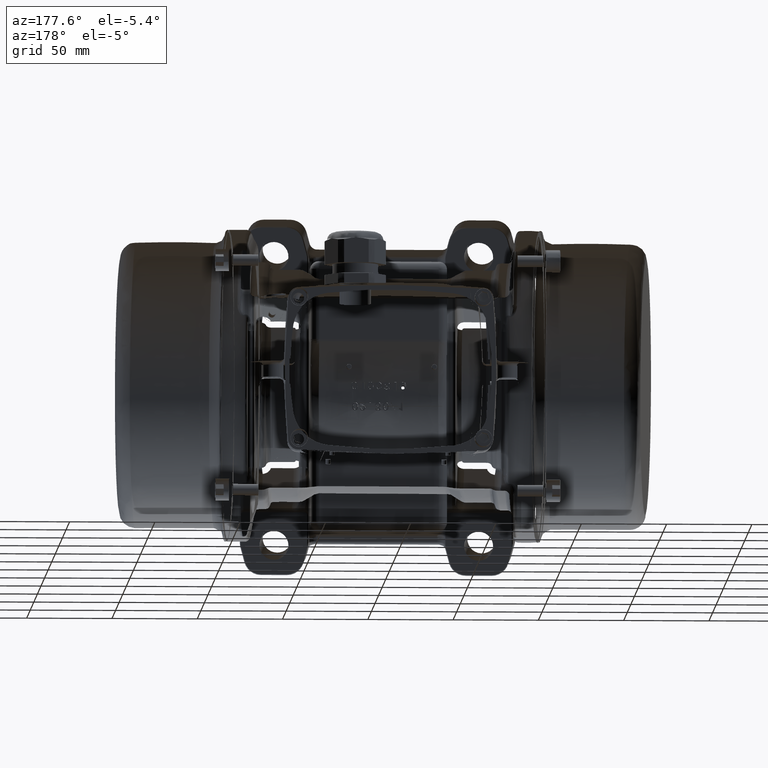
[diagram: clean part render]
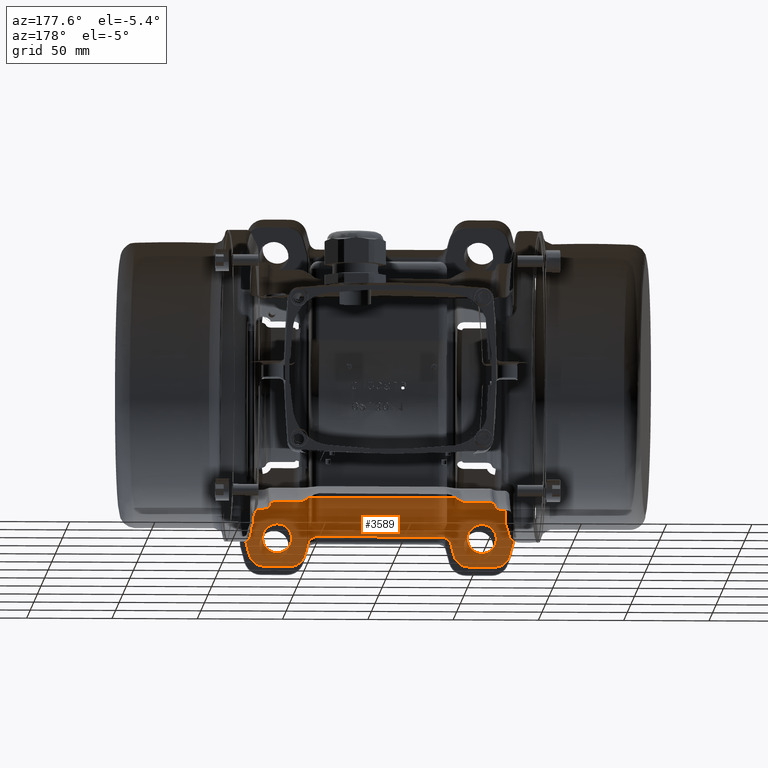
[diagram: same view with one face highlighted and labeled with its STEP entity id]
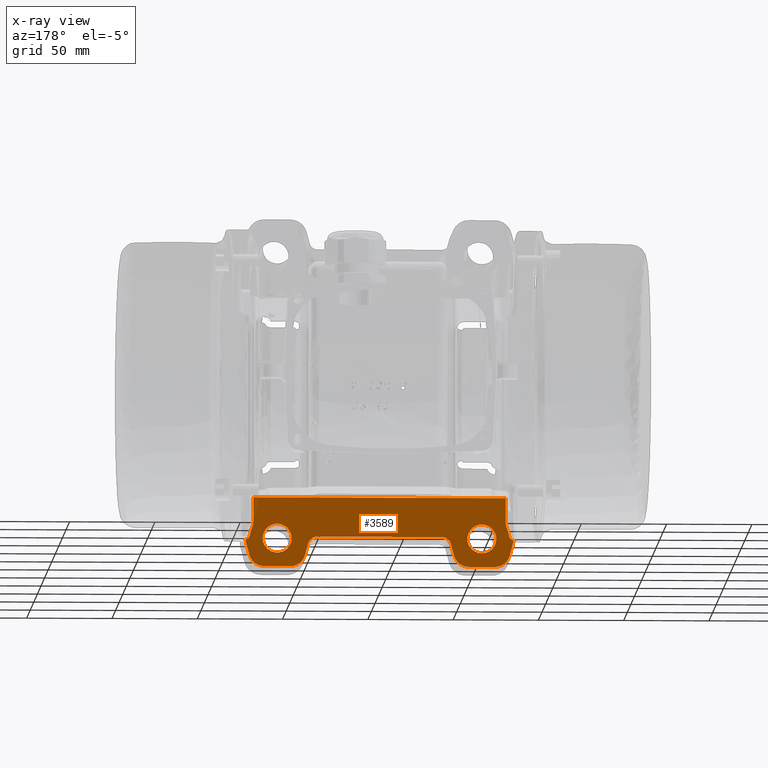
[diagram: x-ray of the same camera — body ghosted, the highlighted face saturated]
A machine part, auxiliary view. The second image highlights one B-rep face of the part: STEP entity #3589.
The next image is the same camera in x-ray: the body ghosted, the highlighted face saturated — about 1% of this face is hidden behind the body in this view.
In plain terms, the highlighted planar face has unit normal (0, 1, -0).
Its self-contained STEP definition (entity closure, byte-faithful):
#354 = ORIENTED_EDGE ( 'NONE', *, *, #59811, .F. ) ;
#610 = VERTEX_POINT ( 'NONE', #130460 ) ;
#1073 = VECTOR ( 'NONE', #47473, 1000.000000000000000 ) ;
#2691 = CARTESIAN_POINT ( 'NONE',  ( -61.09999337793519900, -49.57102062944973400, -77.88694987422079000 ) ) ;
#2800 = ORIENTED_EDGE ( 'NONE', *, *, #37960, .F. ) ;
#2937 = CARTESIAN_POINT ( 'NONE',  ( 58.90000662206480100, -49.57102062945035200, -77.88694987422079000 ) ) ;
#3587 = CARTESIAN_POINT ( 'NONE',  ( -64.90196880676140300, -49.57102062944973400, -84.99999999467819100 ) ) ;
#3589 = ADVANCED_FACE ( 'NONE', ( #94436, #91178, #8444 ), #57366, .F. ) ;
#4264 = CARTESIAN_POINT ( 'NONE',  ( 60.37915746708970500, -49.57102062945035200, -77.09640216827131100 ) ) ;
#5014 = CARTESIAN_POINT ( 'NONE',  ( -70.95587127662609800, -49.57102062944960600, -78.47420416024569100 ) ) ;
#5397 = CARTESIAN_POINT ( 'NONE',  ( -47.95676305739189600, -49.57102062944978400, -86.66895727220610000 ) ) ;
#6229 = CARTESIAN_POINT ( 'NONE',  ( -72.23758783673700600, -49.57102062944969800, -83.09544305270601700 ) ) ;
#7141 = CARTESIAN_POINT ( 'NONE',  ( -74.45862409181700100, -49.57102062944960600, -85.92144296962631200 ) ) ;
#8014 = CARTESIAN_POINT ( 'NONE',  ( 74.23745864845460600, -49.57102062945040200, -101.1759952514775900 ) ) ;
#8114 = EDGE_CURVE ( 'NONE', #114702, #130910, #126010, .T. ) ;
#8444 = FACE_BOUND ( 'NONE', #34370, .T. ) ;
#8540 = CARTESIAN_POINT ( 'NONE',  ( 66.44055352338570200, -49.57102062945036600, -93.16455553289348800 ) ) ;
#8592 = B_SPLINE_CURVE_WITH_KNOTS ( 'NONE', 3,
 ( #48030, #69288, #7141, #79653, #68404, #120493, #6229, #28041 ),
 .UNSPECIFIED., .F., .F.,
 ( 4, 1, 1, 1, 1, 4 ),
 ( 0.0000000000000000000, 0.1204963833332758200, 0.2424206872762996500, 0.4897880289784178300, 0.7427021554829816900, 1.000000000000000000 ),
 .UNSPECIFIED. ) ;
#8754 = CARTESIAN_POINT ( 'NONE',  ( 77.65282437554790800, -49.57102062945040200, -61.00000000000000000 ) ) ;
#8913 = CARTESIAN_POINT ( 'NONE',  ( 79.30473542575721500, -49.57102062945050100, -81.61976216154370400 ) ) ;
#9353 = CARTESIAN_POINT ( 'NONE',  ( 78.41188556413818800, -49.57102062945040200, -78.81081358107650200 ) ) ;
#9650 = EDGE_CURVE ( 'NONE', #610, #33587, #126744, .T. ) ;
#9714 = CARTESIAN_POINT ( 'NONE',  ( 56.01520517549649700, -49.57102062945030200, -101.5000000000000000 ) ) ;
#10246 = CARTESIAN_POINT ( 'NONE',  ( 47.32187273889490300, -49.57102062945030200, -94.82937140592271400 ) ) ;
#10284 = B_SPLINE_CURVE_WITH_KNOTS ( 'NONE', 3,
 ( #37121, #37572, #100063, #90525, #8014, #120038, #121830 ),
 .UNSPECIFIED., .F., .F.,
 ( 4, 1, 1, 1, 4 ),
 ( 0.0000000000000000000, 0.2499999999999996100, 0.5000000000000000000, 0.7499999999999992200, 1.000000000000000000 ),
 .UNSPECIFIED. ) ;
#10600 = CARTESIAN_POINT ( 'NONE',  ( 47.57483544414790100, -49.57102062945030200, -95.77344107434719000 ) ) ;
#10650 = LINE ( 'NONE', #94960, #36588 ) ;
#11114 = CARTESIAN_POINT ( 'NONE',  ( 63.65282437554789400, -49.57102062945050100, -76.50000000000000000 ) ) ;
#11299 = CARTESIAN_POINT ( 'NONE',  ( 42.00080657358429900, -49.57102062945030200, -84.19800290187494300 ) ) ;
#11747 = CARTESIAN_POINT ( 'NONE',  ( 44.85506782146443100, -49.57102062945030200, -86.38815458811569700 ) ) ;
#12062 = EDGE_CURVE ( 'NONE', #61696, #79007, #22700, .T. ) ;
#12099 = VERTEX_POINT ( 'NONE', #8754 ) ;
#12215 = CARTESIAN_POINT ( 'NONE',  ( -59.13490477229001400, -49.57102062944973400, -93.16455553289347300 ) ) ;
#12380 = LINE ( 'NONE', #17917, #1073 ) ;
#12721 = CARTESIAN_POINT ( 'NONE',  ( 82.31729904613209200, -49.57102062945050100, -61.00000000000000000 ) ) ;
#13266 = CARTESIAN_POINT ( 'NONE',  ( -36.30244386023505100, -49.57102062944979800, -85.05829557009971600 ) ) ;
#13291 = CARTESIAN_POINT ( 'NONE',  ( -56.34717562445209900, -49.57102062945050100, -76.50000000000000000 ) ) ;
#13299 = CARTESIAN_POINT ( 'NONE',  ( -40.26918664043784400, -49.57102062944979800, -95.77344107434719000 ) ) ;
#13574 = CARTESIAN_POINT ( 'NONE',  ( -64.25077292789689000, -49.57102062944964200, -81.72622258617410300 ) ) ;
#15151 = CARTESIAN_POINT ( 'NONE',  ( 55.09803119323859700, -49.57102062945035200, -84.99999999467819100 ) ) ;
#15179 = ORIENTED_EDGE ( 'NONE', *, *, #54737, .F. ) ;
#15865 = LINE ( 'NONE', #12721, #98575 ) ;
#16331 = ORIENTED_EDGE ( 'NONE', *, *, #60550, .T. ) ;
#16410 = EDGE_CURVE ( 'NONE', #130910, #114702, #82536, .T. ) ;
#16484 = ORIENTED_EDGE ( 'NONE', *, *, #77305, .F. ) ;
#16721 = CARTESIAN_POINT ( 'NONE',  ( -49.23415543349450000, -49.57102062944978400, -89.75278842113321800 ) ) ;
#17511 = CARTESIAN_POINT ( 'NONE',  ( 79.48824068512719500, -49.57102062945040200, -82.71098838261218600 ) ) ;
#17622 = CARTESIAN_POINT ( 'NONE',  ( -55.23316201241506500, -49.57102062944972000, -93.49999999999997200 ) ) ;
#17715 = CARTESIAN_POINT ( 'NONE',  ( -71.72817571040469900, -49.57102062944960600, -80.54657546910671300 ) ) ;
#17917 = CARTESIAN_POINT ( 'NONE',  ( 82.31729904613209200, -49.57102062945050100, -101.5000000000000000 ) ) ;
#18201 = EDGE_CURVE ( 'NONE', #33587, #12099, #15865, .T. ) ;
#18414 = CARTESIAN_POINT ( 'NONE',  ( 79.75527561118399000, -49.57102062945050100, -83.84267171251980200 ) ) ;
#19308 = VERTEX_POINT ( 'NONE', #57489 ) ;
#19442 = CARTESIAN_POINT ( 'NONE',  ( 70.76587661614179600, -49.57102062945036600, -80.24721185560270000 ) ) ;
#19781 = ORIENTED_EDGE ( 'NONE', *, *, #21163, .F. ) ;
#19899 = CARTESIAN_POINT ( 'NONE',  ( 66.92649128400609000, -49.57102062945036600, -77.09640216827141000 ) ) ;
#20386 = CARTESIAN_POINT ( 'NONE',  ( -70.34717562445220600, -49.57102062944960600, -60.99792696582159800 ) ) ;
#20538 = ORIENTED_EDGE ( 'NONE', *, *, #92445, .F. ) ;
#21163 = EDGE_CURVE ( 'NONE', #79007, #130935, #104974, .T. ) ;
#21628 = CARTESIAN_POINT ( 'NONE',  ( 79.98377611742959900, -49.57102062945050100, -94.82937140592271400 ) ) ;
#22230 = CARTESIAN_POINT ( 'NONE',  ( -61.09954681966869600, -49.57102062944964200, -92.11305397879260700 ) ) ;
#22454 = EDGE_CURVE ( 'NONE', #24594, #61713, #133947, .T. ) ;
#22700 = LINE ( 'NONE', #120312, #103856 ) ;
#22853 = CARTESIAN_POINT ( 'NONE',  ( -48.70955637178639800, -49.57102062944979800, -101.5000000000000000 ) ) ;
#24021 = DIRECTION ( 'NONE',  ( 9.234783090513528800E-031, 1.713131759943009800E-016, 1.000000000000000000 ) ) ;
#24030 = CARTESIAN_POINT ( 'NONE',  ( -64.25078147446659200, -49.57102062944973400, -88.27377733932009100 ) ) ;
#24395 = CARTESIAN_POINT ( 'NONE',  ( 78.06057222484254500, -49.57102062945047300, -78.02398350537029600 ) ) ;
#24594 = VERTEX_POINT ( 'NONE', #119717 ) ;
#24848 = CARTESIAN_POINT ( 'NONE',  ( 78.26152002772180100, -49.57102062945040200, -78.47420416024529300 ) ) ;
#26727 = CARTESIAN_POINT ( 'NONE',  ( -48.44356977443769800, -49.57102062944978400, -88.27377733932009100 ) ) ;
#27275 = CARTESIAN_POINT ( 'NONE',  ( -72.18259199421589800, -49.57102062944960600, -82.71098835888520300 ) ) ;
#27725 = CARTESIAN_POINT ( 'NONE',  ( -71.10623681304240100, -49.57102062944969800, -78.81081358107678600 ) ) ;
#28041 = CARTESIAN_POINT ( 'NONE',  ( -72.18259199421589800, -49.57102062944960600, -82.71098835888520300 ) ) ;
#28122 = CARTESIAN_POINT ( 'NONE',  ( 56.01520517549649700, -49.57102062945030200, -101.5000000000000000 ) ) ;
#29913 = CARTESIAN_POINT ( 'NONE',  ( 69.70196833715709800, -49.57102062945036600, -78.95084810741570900 ) ) ;
#29920 = ORIENTED_EDGE ( 'NONE', *, *, #39336, .F. ) ;
#31833 = EDGE_CURVE ( 'NONE', #19308, #73377, #127982, .T. ) ;
#32031 = CARTESIAN_POINT ( 'NONE',  ( 63.09739391368031400, -49.57102062945035200, -76.50000000000000000 ) ) ;
#32554 = ORIENTED_EDGE ( 'NONE', *, *, #12062, .F. ) ;
#33587 = VERTEX_POINT ( 'NONE', #111889 ) ;
#34007 = CARTESIAN_POINT ( 'NONE',  ( -57.46118923648929000, -49.57102062944967700, -93.50000000000001400 ) ) ;
#34049 = CARTESIAN_POINT ( 'NONE',  ( 40.19985298225690000, -49.57102062945020300, -84.00000000000000000 ) ) ;
#34148 = CARTESIAN_POINT ( 'NONE',  ( -38.05220790325980600, -49.57102062944979800, -87.49956378789899200 ) ) ;
#34344 = VECTOR ( 'NONE', #103380, 1000.000000000000100 ) ;
#34370 = EDGE_LOOP ( 'NONE', ( #2800, #131575 ) ) ;
#34463 = CARTESIAN_POINT ( 'NONE',  ( -64.73758819151238700, -49.57102062944973400, -86.66895727220610000 ) ) ;
#34693 = CARTESIAN_POINT ( 'NONE',  ( 57.60368041393869700, -49.57102062945035200, -78.95084810741570900 ) ) ;
#34771 = AXIS2_PLACEMENT_3D ( 'NONE', #120757, #89903, #58247 ) ;
#35707 = CARTESIAN_POINT ( 'NONE',  ( 77.65282437554790800, -49.57102062945040200, -75.61916848035269800 ) ) ;
#36588 = VECTOR ( 'NONE', #44261, 999.9999999999998900 ) ;
#37083 = EDGE_CURVE ( 'NONE', #61713, #45879, #10650, .T. ) ;
#37121 = CARTESIAN_POINT ( 'NONE',  ( 79.98377611742959900, -49.57102062945050100, -94.82937140592271400 ) ) ;
#37572 = CARTESIAN_POINT ( 'NONE',  ( 79.73081341217670100, -49.57102062945050100, -95.77344107434719000 ) ) ;
#37960 = EDGE_CURVE ( 'NONE', #78294, #38145, #43306, .T. ) ;
#38145 = VERTEX_POINT ( 'NONE', #81908 ) ;
#38415 = B_SPLINE_CURVE_WITH_KNOTS ( 'NONE', 3,
 ( #38439, #9353, #70620, #121806, #8913, #81883, #123596 ),
 .UNSPECIFIED., .F., .F.,
 ( 4, 1, 1, 1, 4 ),
 ( 0.0000000000000000000, 0.2499999999999972800, 0.4999999999999979500, 0.7499999999999967800, 1.000000000000000000 ),
 .UNSPECIFIED. ) ;
#38439 = CARTESIAN_POINT ( 'NONE',  ( 78.26152002772180100, -49.57102062945040200, -78.47420416024529300 ) ) ;
#38537 = CARTESIAN_POINT ( 'NONE',  ( 64.20825483741541000, -49.57102062945036600, -76.50000000000000000 ) ) ;
#38746 = ORIENTED_EDGE ( 'NONE', *, *, #22454, .F. ) ;
#39336 = EDGE_CURVE ( 'NONE', #111061, #610, #121371, .T. ) ;
#39883 = CARTESIAN_POINT ( 'NONE',  ( 69.70208798913279200, -49.57102062945036600, -91.04915086014710800 ) ) ;
#40732 = CARTESIAN_POINT ( 'NONE',  ( -70.85596443883820000, -49.57102062944969800, -78.25055196170120600 ) ) ;
#40800 = VECTOR ( 'NONE', #24021, 1000.000000000000000 ) ;
#41055 = CARTESIAN_POINT ( 'NONE',  ( 50.43808569637030100, -49.57102062945030200, -99.76824361256420600 ) ) ;
#41339 = VECTOR ( 'NONE', #79998, 1000.000000000000000 ) ;
#43037 = B_SPLINE_CURVE_WITH_KNOTS ( 'NONE', 3,
 ( #129286, #86222, #67246, #13266, #85771, #34148, #117543 ),
 .UNSPECIFIED., .F., .F.,
 ( 4, 1, 1, 1, 4 ),
 ( 0.0000000000000000000, 0.2500000000000003300, 0.5000000000000000000, 0.7500000000000003300, 1.000000000000000000 ),
 .UNSPECIFIED. ) ;
#43306 = B_SPLINE_CURVE_WITH_KNOTS ( 'NONE', 3,
 ( #62621, #53123, #63517, #65770, #2691, #76127, #65324, #13574, #75242, #3587, #34463, #24030, #44482, #86071, #22230, #12215, #34007, #127346 ),
 .UNSPECIFIED., .F., .F.,
 ( 4, 1, 1, 1, 1, 1, 1, 1, 1, 1, 1, 1, 1, 1, 1, 4 ),
 ( 0.02657571006304969600, 0.02823774703548821400, 0.02989978400792674500, 0.03156182098036525900, 0.03322385795280378300, 0.03488589492524231400, 0.03654793189768083800, 0.03820996887011935500, 0.03987200584255786600, 0.04153404281499639700, 0.04319607978743490700, 0.04485811675987344500, 0.04652015373231199700, 0.04818219070475048000, 0.04984422767718901800, 0.05315229529745962200 ),
 .UNSPECIFIED. ) ;
#43694 = CARTESIAN_POINT ( 'NONE',  ( -72.18259199421589800, -49.57102062944960600, -82.71098835888520300 ) ) ;
#44261 = DIRECTION ( 'NONE',  ( -0.2588190451025149700, 1.540601749877584900E-015, -0.9659258262890698700 ) ) ;
#44482 = CARTESIAN_POINT ( 'NONE',  ( -63.46019581540979000, -49.57102062944973400, -89.75278842113310400 ) ) ;
#44934 = CARTESIAN_POINT ( 'NONE',  ( -72.42516460846650300, -49.57102062944960600, -95.77344107434719000 ) ) ;
#44987 = CARTESIAN_POINT ( 'NONE',  ( 82.31729904613209200, -49.57102062945050100, -84.00000000000000000 ) ) ;
#45372 = ORIENTED_EDGE ( 'NONE', *, *, #8114, .F. ) ;
#45879 = VERTEX_POINT ( 'NONE', #21628 ) ;
#47473 = DIRECTION ( 'NONE',  ( -1.000000000000000000, 5.390585421649490700E-015, 0.0000000000000000000 ) ) ;
#47505 = CARTESIAN_POINT ( 'NONE',  ( 63.65282437554780900, -49.57102062945050100, -93.50000000000001400 ) ) ;
#48030 = CARTESIAN_POINT ( 'NONE',  ( -75.00957721331039400, -49.57102062944960600, -86.12828192534831800 ) ) ;
#48074 = CARTESIAN_POINT ( 'NONE',  ( -56.34717562445214200, -49.57102062945050100, -93.50000000000000000 ) ) ;
#48867 = CARTESIAN_POINT ( 'NONE',  ( 82.13002670730439500, -49.57102062945050100, -86.06898774641671000 ) ) ;
#49458 = CARTESIAN_POINT ( 'NONE',  ( 72.04323907925048300, -49.57102062945036600, -83.33104274908129100 ) ) ;
#49526 = CARTESIAN_POINT ( 'NONE',  ( -71.38378448959649300, -49.57102062944960600, -79.49466429680688900 ) ) ;
#50541 = ORIENTED_EDGE ( 'NONE', *, *, #37083, .F. ) ;
#50642 = VERTEX_POINT ( 'NONE', #58163 ) ;
#50854 = B_SPLINE_CURVE_WITH_KNOTS ( 'NONE', 3,
 ( #48074, #17622, #110571, #88781, #109231, #16721, #26727, #5397, #108785, #130043, #131376, #69337, #98762, #68890, #120990, #99214, #79253, #77914 ),
 .UNSPECIFIED., .F., .F.,
 ( 4, 1, 1, 1, 1, 1, 1, 1, 1, 1, 1, 1, 1, 1, 1, 4 ),
 ( 5.721958498152796800E-017, 0.003307958685055231500, 0.004969940926340520700, 0.006631923167625859000, 0.008293905408911204200, 0.009955887650196493900, 0.01161786989148183200, 0.01327985213276712400, 0.01494183437405246700, 0.01660381661533780500, 0.01826579885662309500, 0.01992778109790843300, 0.02158976333919372300, 0.02325174558047911700, 0.02491372782176441000, 0.02657571006304969600 ),
 .UNSPECIFIED. ) ;
#51712 = VERTEX_POINT ( 'NONE', #34049 ) ;
#51910 = ORIENTED_EDGE ( 'NONE', *, *, #122691, .F. ) ;
#52472 = VERTEX_POINT ( 'NONE', #62607 ) ;
#52496 = EDGE_CURVE ( 'NONE', #87084, #51712, #122744, .T. ) ;
#52543 = CARTESIAN_POINT ( 'NONE',  ( -70.95587127662609800, -49.57102062944960600, -78.47420416024569100 ) ) ;
#52921 = CARTESIAN_POINT ( 'NONE',  ( 61.98345471224410400, -49.57102062945035200, -76.60958529461829900 ) ) ;
#53123 = CARTESIAN_POINT ( 'NONE',  ( -56.90260608631970000, -49.57102062944973400, -76.50000000000000000 ) ) ;
#53545 = CARTESIAN_POINT ( 'NONE',  ( 43.60809266394510100, -49.57102062945030200, -85.05829557009971600 ) ) ;
#54460 = EDGE_CURVE ( 'NONE', #118512, #19308, #12380, .T. ) ;
#54737 = EDGE_CURVE ( 'NONE', #50642, #118512, #111849, .T. ) ;
#55566 = CARTESIAN_POINT ( 'NONE',  ( 57.60356076196290300, -49.57102062945035200, -91.04915086014710800 ) ) ;
#56086 = EDGE_LOOP ( 'NONE', ( #93803, #45372 ) ) ;
#57366 = PLANE ( 'NONE',  #34771 ) ;
#57489 = CARTESIAN_POINT ( 'NONE',  ( -63.98479487711799900, -49.57102062944969800, -101.5000000000000000 ) ) ;
#57626 = CARTESIAN_POINT ( 'NONE',  ( -75.00957721331039400, -49.57102062944960600, -86.12828192534831800 ) ) ;
#58163 = CARTESIAN_POINT ( 'NONE',  ( -40.01622393518480400, -49.57102062944979800, -94.82937140592271400 ) ) ;
#58202 = DIRECTION ( 'NONE',  ( -0.2588190451025255100, 9.925336515622269200E-016, -0.9659258262890669800 ) ) ;
#58247 = DIRECTION ( 'NONE',  ( -1.000000000000000000, 5.390585421649490700E-015, 0.0000000000000000000 ) ) ;
#59265 = CARTESIAN_POINT ( 'NONE',  ( 82.31522601289860600, -49.57102062945050100, -86.12828194074410200 ) ) ;
#59811 = EDGE_CURVE ( 'NONE', #73377, #82770, #60709, .T. ) ;
#60375 = LINE ( 'NONE', #131474, #79812 ) ;
#60550 = EDGE_CURVE ( 'NONE', #71372, #52472, #68591, .T. ) ;
#60709 = LINE ( 'NONE', #69626, #41339 ) ;
#61122 = VERTEX_POINT ( 'NONE', #94384 ) ;
#61187 = CARTESIAN_POINT ( 'NONE',  ( 71.55643022556230900, -49.57102062945036600, -88.27377733932009100 ) ) ;
#61270 = ORIENTED_EDGE ( 'NONE', *, *, #130768, .F. ) ;
#61596 = CARTESIAN_POINT ( 'NONE',  ( -70.34717562445210600, -49.57102062944969800, -75.86412088828269900 ) ) ;
#61696 = VERTEX_POINT ( 'NONE', #114055 ) ;
#61713 = VERTEX_POINT ( 'NONE', #129951 ) ;
#61945 = LINE ( 'NONE', #123786, #34344 ) ;
#62059 = ORIENTED_EDGE ( 'NONE', *, *, #125431, .F. ) ;
#62357 = CARTESIAN_POINT ( 'NONE',  ( 48.39758089315689900, -49.57102062945030200, -97.59211067399250800 ) ) ;
#62411 = ORIENTED_EDGE ( 'NONE', *, *, #9650, .F. ) ;
#62607 = CARTESIAN_POINT ( 'NONE',  ( 77.65282437554790800, -49.57102062945040200, -75.61916848035269800 ) ) ;
#62621 = CARTESIAN_POINT ( 'NONE',  ( -56.34717562445209900, -49.57102062945050100, -76.50000000000000000 ) ) ;
#63501 = VECTOR ( 'NONE', #87469, 1000.000000000000000 ) ;
#63517 = CARTESIAN_POINT ( 'NONE',  ( -58.01654528775589600, -49.57102062944973400, -76.60958529461829900 ) ) ;
#64429 = CARTESIAN_POINT ( 'NONE',  ( -71.60241915945752600, -49.57102062944969800, -97.59211067399239400 ) ) ;
#65324 = CARTESIAN_POINT ( 'NONE',  ( -63.46022786504610000, -49.57102062944973400, -80.24721185560270000 ) ) ;
#65499 = CARTESIAN_POINT ( 'NONE',  ( -43.13243689266015200, -49.57102062944979800, -99.76824361256410600 ) ) ;
#65770 = CARTESIAN_POINT ( 'NONE',  ( -59.62084253291030200, -49.57102062944973400, -77.09640216827131100 ) ) ;
#66122 = CARTESIAN_POINT ( 'NONE',  ( 77.90911208369091400, -49.57102062945049400, -77.55954312700220000 ) ) ;
#66211 = CARTESIAN_POINT ( 'NONE',  ( -69.56191435624410200, -49.57102062944969800, -99.76824361256414900 ) ) ;
#67246 = CARTESIAN_POINT ( 'NONE',  ( -34.69515776987420000, -49.57102062944979800, -84.19800290187480100 ) ) ;
#67672 = DIRECTION ( 'NONE',  ( 0.0000000000000000000, 0.0000000000000000000, -1.000000000000000000 ) ) ;
#68404 = CARTESIAN_POINT ( 'NONE',  ( -73.05734135688669500, -49.57102062944969800, -84.84986079350989000 ) ) ;
#68591 = B_SPLINE_CURVE_WITH_KNOTS ( 'NONE', 3,
 ( #24848, #24395, #66122, #86880, #128613, #35707 ),
 .UNSPECIFIED., .F., .F.,
 ( 4, 2, 4 ),
 ( 0.0000000000000000000, 0.5000000000000000000, 1.000000000000000000 ),
 .UNSPECIFIED. ) ;
#68890 = CARTESIAN_POINT ( 'NONE',  ( -51.59435787096909800, -49.57102062944978400, -77.88694987422079000 ) ) ;
#69288 = CARTESIAN_POINT ( 'NONE',  ( -74.82437791049579800, -49.57102062944960600, -86.06898772920190800 ) ) ;
#69337 = CARTESIAN_POINT ( 'NONE',  ( -49.23412338385819700, -49.57102062944978400, -80.24721185560260000 ) ) ;
#69626 = CARTESIAN_POINT ( 'NONE',  ( -72.67812731371950000, -49.57102062944960600, -94.82937140592260100 ) ) ;
#70620 = CARTESIAN_POINT ( 'NONE',  ( 78.68943324069229600, -49.57102062945050100, -79.49466429680660400 ) ) ;
#70711 = CARTESIAN_POINT ( 'NONE',  ( 63.65282437554780900, -49.57102062945050100, -93.50000000000001400 ) ) ;
#71372 = VERTEX_POINT ( 'NONE', #97200 ) ;
#71553 = CARTESIAN_POINT ( 'NONE',  ( -70.67951399388680000, -49.57102062944960600, -77.79238840027559800 ) ) ;
#71598 = CARTESIAN_POINT ( 'NONE',  ( 68.40564212903089500, -49.57102062945036600, -77.88694987422079000 ) ) ;
#72004 = CARTESIAN_POINT ( 'NONE',  ( -70.34717562445220600, -49.57102062944960600, -75.61916848035311000 ) ) ;
#72751 = CARTESIAN_POINT ( 'NONE',  ( -72.67812731371950000, -49.57102062944960600, -94.82937140592260100 ) ) ;
#73377 = VERTEX_POINT ( 'NONE', #72751 ) ;
#73452 = CARTESIAN_POINT ( 'NONE',  ( 45.51244502684679800, -49.57102062945030200, -88.07649525193619400 ) ) ;
#73891 = CARTESIAN_POINT ( 'NONE',  ( 45.35785670696977700, -49.57102062945030200, -87.49956378789899200 ) ) ;
#75242 = CARTESIAN_POINT ( 'NONE',  ( -64.73759032815479500, -49.57102062944973400, -83.33104274908129100 ) ) ;
#75486 = CARTESIAN_POINT ( 'NONE',  ( 60.86509522771009300, -49.57102062945035200, -93.16455553289348800 ) ) ;
#76127 = CARTESIAN_POINT ( 'NONE',  ( -62.39631958606129600, -49.57102062944964200, -78.95084810741570900 ) ) ;
#77305 = EDGE_CURVE ( 'NONE', #61122, #130674, #43037, .T. ) ;
#77914 = CARTESIAN_POINT ( 'NONE',  ( -56.34717562445209900, -49.57102062945050100, -76.50000000000000000 ) ) ;
#78294 = VERTEX_POINT ( 'NONE', #13291 ) ;
#78590 = DIRECTION ( 'NONE',  ( -1.000000000000000000, 5.390585421649490700E-015, 0.0000000000000000000 ) ) ;
#79007 = VERTEX_POINT ( 'NONE', #28122 ) ;
#79253 = CARTESIAN_POINT ( 'NONE',  ( -55.79174516258459700, -49.57102062944978400, -76.50000000000000000 ) ) ;
#79653 = CARTESIAN_POINT ( 'NONE',  ( -73.78269551067128900, -49.57102062944960600, -85.52441608878240200 ) ) ;
#79812 = VECTOR ( 'NONE', #67672, 1000.000000000000000 ) ;
#79998 = DIRECTION ( 'NONE',  ( -0.2588190451025199100, 1.540601747139389300E-015, 0.9659258262890685300 ) ) ;
#80259 = CARTESIAN_POINT ( 'NONE',  ( -71.99908667466129900, -49.57102062944960600, -81.61976216154390300 ) ) ;
#80821 = ORIENTED_EDGE ( 'NONE', *, *, #18201, .F. ) ;
#81065 = CARTESIAN_POINT ( 'NONE',  ( 68.40519557076450500, -49.57102062945036600, -92.11305397879270600 ) ) ;
#81524 = CARTESIAN_POINT ( 'NONE',  ( 71.55642167899260600, -49.57102062945036600, -81.72622258617410300 ) ) ;
#81883 = CARTESIAN_POINT ( 'NONE',  ( 79.43549840591549600, -49.57102062945040200, -82.34611301146779300 ) ) ;
#81908 = CARTESIAN_POINT ( 'NONE',  ( -56.34717562445214200, -49.57102062945050100, -93.50000000000000000 ) ) ;
#82237 = CARTESIAN_POINT ( 'NONE',  ( 53.06819020786979700, -49.57102062945030200, -101.1759952514775900 ) ) ;
#82536 = B_SPLINE_CURVE_WITH_KNOTS ( 'NONE', 3,
 ( #11114, #32031, #52921, #4264, #2937, #34693, #117190, #106305, #118505, #15151, #107186, #98083, #87636, #55566, #128932, #75486, #87195, #106743 ),
 .UNSPECIFIED., .F., .F.,
 ( 4, 1, 1, 1, 1, 1, 1, 1, 1, 1, 1, 1, 1, 1, 1, 4 ),
 ( 0.02657571006304979000, 0.02823774703548826200, 0.02989978400792674800, 0.03156182098036521700, 0.03322385795280369300, 0.03488589492524218200, 0.03654793189768064400, 0.03820996887011911300, 0.03987200584255760200, 0.04153404281499608500, 0.04319607978743454600, 0.04485811675987305000, 0.04652015373231149800, 0.04818219070474999400, 0.04984422767718849100, 0.05315229529745899700 ),
 .UNSPECIFIED. ) ;
#82770 = VERTEX_POINT ( 'NONE', #57626 ) ;
#83829 = CARTESIAN_POINT ( 'NONE',  ( 40.79713638470370500, -49.57102062945020300, -84.00000000000000000 ) ) ;
#84705 = CARTESIAN_POINT ( 'NONE',  ( -38.20679622313669900, -49.57102062944979800, -88.07649525193609500 ) ) ;
#84905 = CARTESIAN_POINT ( 'NONE',  ( -45.76254140415970500, -49.57102062944979800, -101.1759952514775900 ) ) ;
#85677 = DIRECTION ( 'NONE',  ( 1.000000000000000000, -5.390585421649490700E-015, -0.0000000000000000000 ) ) ;
#85771 = CARTESIAN_POINT ( 'NONE',  ( -37.54941901775434600, -49.57102062944979800, -86.38815458811569700 ) ) ;
#85801 = CARTESIAN_POINT ( 'NONE',  ( -41.09193208944682900, -49.57102062944979800, -97.59211067399250800 ) ) ;
#86071 = CARTESIAN_POINT ( 'NONE',  ( -62.39643923803710400, -49.57102062944973400, -91.04915086014710800 ) ) ;
#86222 = CARTESIAN_POINT ( 'NONE',  ( -33.49148758099364900, -49.57102062944979800, -84.00000000000000000 ) ) ;
#86880 = CARTESIAN_POINT ( 'NONE',  ( 77.70426655359368300, -49.57102062945048000, -76.59799563050239600 ) ) ;
#86966 = CARTESIAN_POINT ( 'NONE',  ( -64.96216771748549900, -49.57102062944969800, -101.5000000000000000 ) ) ;
#87084 = VERTEX_POINT ( 'NONE', #107081 ) ;
#87195 = CARTESIAN_POINT ( 'NONE',  ( 62.53881076351071000, -49.57102062945035200, -93.50000000000001400 ) ) ;
#87469 = DIRECTION ( 'NONE',  ( -1.000000000000000000, 5.390585421649490700E-015, 0.0000000000000000000 ) ) ;
#87636 = CARTESIAN_POINT ( 'NONE',  ( 56.53980418459030200, -49.57102062945035200, -89.75278842113321800 ) ) ;
#88781 = CARTESIAN_POINT ( 'NONE',  ( -51.59480442923550200, -49.57102062944978400, -92.11305397879270600 ) ) ;
#89903 = DIRECTION ( 'NONE',  ( 5.390585421649490700E-015, 1.000000000000000000, -1.713131759943009800E-016 ) ) ;
#90017 = CARTESIAN_POINT ( 'NONE',  ( 79.54323658841269700, -49.57102062945040200, -83.09544305687140300 ) ) ;
#90525 = CARTESIAN_POINT ( 'NONE',  ( 76.86756315995418700, -49.57102062945040200, -99.76824361256420600 ) ) ;
#90695 = EDGE_LOOP ( 'NONE', ( #16331, #51910, #80821, #62411, #29920, #110506, #105905, #354, #130383, #103129, #15179, #20538, #16484, #118077, #117370, #62059, #19781, #32554, #131352, #50541, #38746, #61270 ) ) ;
#90811 = CARTESIAN_POINT ( 'NONE',  ( -48.70955637178639800, -49.57102062944979800, -101.5000000000000000 ) ) ;
#90989 = LINE ( 'NONE', #44987, #63501 ) ;
#91178 = FACE_BOUND ( 'NONE', #56086, .T. ) ;
#92445 = EDGE_CURVE ( 'NONE', #130674, #50642, #125318, .T. ) ;
#93803 = ORIENTED_EDGE ( 'NONE', *, *, #16410, .F. ) ;
#94384 = CARTESIAN_POINT ( 'NONE',  ( -32.89420417854680100, -49.57102062944979800, -84.00000000000000000 ) ) ;
#94436 = FACE_OUTER_BOUND ( 'NONE', #90695, .T. ) ;
#94534 = CARTESIAN_POINT ( 'NONE',  ( 63.65282437554789400, -49.57102062945050100, -76.50000000000000000 ) ) ;
#94960 = CARTESIAN_POINT ( 'NONE',  ( 82.31522601279631600, -49.57102062945050100, -86.12828194111280300 ) ) ;
#96259 = EDGE_CURVE ( 'NONE', #120729, #111061, #115888, .T. ) ;
#96976 = CARTESIAN_POINT ( 'NONE',  ( -72.67812731371950000, -49.57102062944960600, -94.82937140592260100 ) ) ;
#97200 = CARTESIAN_POINT ( 'NONE',  ( 78.26152002772180100, -49.57102062945040200, -78.47420416024529300 ) ) ;
#97710 = VECTOR ( 'NONE', #58202, 1000.000000000000200 ) ;
#98083 = CARTESIAN_POINT ( 'NONE',  ( 55.74921852553340800, -49.57102062945035200, -88.27377733932009100 ) ) ;
#98500 = CARTESIAN_POINT ( 'NONE',  ( -38.20679622313669900, -49.57102062944979800, -88.07649525193609500 ) ) ;
#98575 = VECTOR ( 'NONE', #85677, 1000.000000000000000 ) ;
#98762 = CARTESIAN_POINT ( 'NONE',  ( -50.29803166284289500, -49.57102062944978400, -78.95084810741570900 ) ) ;
#99214 = CARTESIAN_POINT ( 'NONE',  ( -54.67780596114840100, -49.57102062944978400, -76.60958529461829900 ) ) ;
#100063 = CARTESIAN_POINT ( 'NONE',  ( 78.90806796316749700, -49.57102062945050100, -97.59211067399239400 ) ) ;
#100437 = CARTESIAN_POINT ( 'NONE',  ( 80.36299012306027100, -49.57102062945040200, -84.84986081402028900 ) ) ;
#100576 = CARTESIAN_POINT ( 'NONE',  ( 65.32219403885160600, -49.57102062945036600, -76.60958529461819900 ) ) ;
#101492 = CARTESIAN_POINT ( 'NONE',  ( 64.76683798758493500, -49.57102062945035900, -93.50000000000001400 ) ) ;
#103129 = ORIENTED_EDGE ( 'NONE', *, *, #54460, .F. ) ;
#103380 = DIRECTION ( 'NONE',  ( -0.2588190451025194100, 1.985067303124459400E-015, 0.9659258262890686500 ) ) ;
#103693 = CARTESIAN_POINT ( 'NONE',  ( -70.48844827462430400, -49.57102062944969800, -77.08145406462418200 ) ) ;
#103856 = VECTOR ( 'NONE', #78590, 1000.000000000000000 ) ;
#104007 = CARTESIAN_POINT ( 'NONE',  ( -40.01622393518480400, -49.57102062944979800, -94.82937140592271400 ) ) ;
#104974 = B_SPLINE_CURVE_WITH_KNOTS ( 'NONE', 3,
 ( #9714, #124393, #82237, #41055, #62357, #10600, #115778 ),
 .UNSPECIFIED., .F., .F.,
 ( 4, 1, 1, 1, 4 ),
 ( 0.0000000000000000000, 0.2500000000000003300, 0.5000000000000008900, 0.7499999999999996700, 1.000000000000000000 ),
 .UNSPECIFIED. ) ;
#105905 = ORIENTED_EDGE ( 'NONE', *, *, #110586, .F. ) ;
#106305 = CARTESIAN_POINT ( 'NONE',  ( 55.74922707210309600, -49.57102062945035200, -81.72622258617420200 ) ) ;
#106743 = CARTESIAN_POINT ( 'NONE',  ( 63.65282437554780900, -49.57102062945050100, -93.50000000000001400 ) ) ;
#107081 = CARTESIAN_POINT ( 'NONE',  ( 45.51244502684679800, -49.57102062945030200, -88.07649525193619400 ) ) ;
#107186 = CARTESIAN_POINT ( 'NONE',  ( 55.26241180848759900, -49.57102062945035200, -86.66895727220610000 ) ) ;
#108785 = CARTESIAN_POINT ( 'NONE',  ( -47.79238244214290200, -49.57102062944978400, -84.99999999467819100 ) ) ;
#109152 = EDGE_CURVE ( 'NONE', #38145, #78294, #50854, .T. ) ;
#109231 = CARTESIAN_POINT ( 'NONE',  ( -50.29791201086720100, -49.57102062944978400, -91.04915086014710800 ) ) ;
#110506 = ORIENTED_EDGE ( 'NONE', *, *, #96259, .F. ) ;
#110564 = EDGE_CURVE ( 'NONE', #45879, #61696, #10284, .T. ) ;
#110571 = CARTESIAN_POINT ( 'NONE',  ( -53.55944647661441800, -49.57102062944979100, -93.16455553289340200 ) ) ;
#110586 = EDGE_CURVE ( 'NONE', #82770, #120729, #8592, .T. ) ;
#110911 = CARTESIAN_POINT ( 'NONE',  ( 81.76427288285789500, -49.57102062945050100, -85.92144298963670200 ) ) ;
#111061 = VERTEX_POINT ( 'NONE', #5014 ) ;
#111564 = CARTESIAN_POINT ( 'NONE',  ( -72.12984965481959400, -49.57102062944960600, -82.34611301146789200 ) ) ;
#111849 = B_SPLINE_CURVE_WITH_KNOTS ( 'NONE', 3,
 ( #104007, #13299, #85801, #65499, #84905, #126187, #22853 ),
 .UNSPECIFIED., .F., .F.,
 ( 4, 1, 1, 1, 4 ),
 ( 0.0000000000000000000, 0.2500000000000000000, 0.5000000000000008900, 0.7500000000000001100, 1.000000000000000000 ),
 .UNSPECIFIED. ) ;
#111889 = CARTESIAN_POINT ( 'NONE',  ( -70.34717562445230500, -49.57102062944960600, -61.00000000000000000 ) ) ;
#112377 = CARTESIAN_POINT ( 'NONE',  ( 72.20761755785709100, -49.57102062945036600, -84.99999999467819100 ) ) ;
#114055 = CARTESIAN_POINT ( 'NONE',  ( 71.29044368082800500, -49.57102062945040200, -101.5000000000000000 ) ) ;
#114702 = VERTEX_POINT ( 'NONE', #47505 ) ;
#115133 = CARTESIAN_POINT ( 'NONE',  ( 40.19985298225690000, -49.57102062945020300, -84.00000000000000000 ) ) ;
#115778 = CARTESIAN_POINT ( 'NONE',  ( 47.32187273889490300, -49.57102062945030200, -94.82937140592271400 ) ) ;
#115888 = B_SPLINE_CURVE_WITH_KNOTS ( 'NONE', 3,
 ( #27275, #111564, #80259, #17715, #49526, #27725, #132363 ),
 .UNSPECIFIED., .F., .F.,
 ( 4, 1, 1, 1, 4 ),
 ( 0.0000000000000000000, 0.2499999999999995800, 0.5000000000000010000, 0.7499999999999998900, 1.000000000000000000 ),
 .UNSPECIFIED. ) ;
#117190 = CARTESIAN_POINT ( 'NONE',  ( 56.53977213495390700, -49.57102062945035200, -80.24721185560260000 ) ) ;
#117370 = ORIENTED_EDGE ( 'NONE', *, *, #52496, .F. ) ;
#117543 = CARTESIAN_POINT ( 'NONE',  ( -38.20679622313669900, -49.57102062944979800, -88.07649525193609500 ) ) ;
#118077 = ORIENTED_EDGE ( 'NONE', *, *, #127032, .F. ) ;
#118505 = CARTESIAN_POINT ( 'NONE',  ( 55.26240967184520500, -49.57102062945035200, -83.33104274908129100 ) ) ;
#118512 = VERTEX_POINT ( 'NONE', #90811 ) ;
#119717 = CARTESIAN_POINT ( 'NONE',  ( 79.48824068512719500, -49.57102062945040200, -82.71098838261218600 ) ) ;
#120038 = CARTESIAN_POINT ( 'NONE',  ( 72.26781652119549900, -49.57102062945040200, -101.5000000000000000 ) ) ;
#120312 = CARTESIAN_POINT ( 'NONE',  ( 82.31729904613209200, -49.57102062945050100, -101.5000000000000000 ) ) ;
#120493 = CARTESIAN_POINT ( 'NONE',  ( -72.44962685610399000, -49.57102062944969800, -83.84267170047049000 ) ) ;
#120729 = VERTEX_POINT ( 'NONE', #43694 ) ;
#120757 = CARTESIAN_POINT ( 'NONE',  ( 82.31729904613209200, -49.57102062945050100, -60.99792696582159800 ) ) ;
#120990 = CARTESIAN_POINT ( 'NONE',  ( -53.07350871599390300, -49.57102062944978400, -77.09640216827141000 ) ) ;
#121371 = B_SPLINE_CURVE_WITH_KNOTS ( 'NONE', 3,
 ( #52543, #40732, #71553, #103693, #123646, #61596, #72004 ),
 .UNSPECIFIED., .F., .F.,
 ( 4, 1, 1, 1, 4 ),
 ( 0.0000000000000000000, 0.2500000000000008900, 0.4999999999999993300, 0.7500000000000015500, 1.000000000000000000 ),
 .UNSPECIFIED. ) ;
#121806 = CARTESIAN_POINT ( 'NONE',  ( 79.03382446150048700, -49.57102062945040200, -80.54657546910640100 ) ) ;
#121830 = CARTESIAN_POINT ( 'NONE',  ( 71.29044368082800500, -49.57102062945040200, -101.5000000000000000 ) ) ;
#122654 = CARTESIAN_POINT ( 'NONE',  ( 81.08834429009229400, -49.57102062945050100, -85.52441611141253500 ) ) ;
#122691 = EDGE_CURVE ( 'NONE', #12099, #52472, #60375, .T. ) ;
#122744 = B_SPLINE_CURVE_WITH_KNOTS ( 'NONE', 3,
 ( #73452, #73891, #11747, #53545, #11299, #83829, #115133 ),
 .UNSPECIFIED., .F., .F.,
 ( 4, 1, 1, 1, 4 ),
 ( 0.0000000000000000000, 0.2500000000000004400, 0.5000000000000000000, 0.7500000000000004400, 1.000000000000000000 ),
 .UNSPECIFIED. ) ;
#123239 = CARTESIAN_POINT ( 'NONE',  ( 70.76584456650549300, -49.57102062945036600, -89.75278842113321800 ) ) ;
#123596 = CARTESIAN_POINT ( 'NONE',  ( 79.48824068512719500, -49.57102062945040200, -82.71098838261218600 ) ) ;
#123646 = CARTESIAN_POINT ( 'NONE',  ( -70.37293631289539100, -49.57102062944960600, -76.35441161374330900 ) ) ;
#123786 = CARTESIAN_POINT ( 'NONE',  ( 47.32187273889490300, -49.57102062945030200, -94.82937140592271400 ) ) ;
#124393 = CARTESIAN_POINT ( 'NONE',  ( 55.03783233512889700, -49.57102062945030200, -101.5000000000000000 ) ) ;
#125318 = LINE ( 'NONE', #98500, #97710 ) ;
#125431 = EDGE_CURVE ( 'NONE', #130935, #87084, #61945, .T. ) ;
#126010 = B_SPLINE_CURVE_WITH_KNOTS ( 'NONE', 3,
 ( #70711, #101492, #8540, #81065, #39883, #123239, #61187, #133642, #112377, #49458, #81524, #19442, #29913, #71598, #19899, #100576, #38537, #131856 ),
 .UNSPECIFIED., .F., .F.,
 ( 4, 1, 1, 1, 1, 1, 1, 1, 1, 1, 1, 1, 1, 1, 1, 4 ),
 ( 1.387778780781445700E-017, 0.003307958685055204600, 0.004969940926340502500, 0.006631923167625850300, 0.008293905408911204200, 0.009955887650196502600, 0.01161786989148185000, 0.01327985213276719700, 0.01494183437405250200, 0.01660381661533784700, 0.01826579885662314700, 0.01992778109790849600, 0.02158976333919378900, 0.02325174558047919300, 0.02491372782176449300, 0.02657571006304979000 ),
 .UNSPECIFIED. ) ;
#126187 = CARTESIAN_POINT ( 'NONE',  ( -47.73218353141879800, -49.57102062944979800, -101.5000000000000000 ) ) ;
#126455 = CARTESIAN_POINT ( 'NONE',  ( -63.98479487711799900, -49.57102062944969800, -101.5000000000000000 ) ) ;
#126744 = LINE ( 'NONE', #20386, #40800 ) ;
#127032 = EDGE_CURVE ( 'NONE', #51712, #61122, #90989, .T. ) ;
#127346 = CARTESIAN_POINT ( 'NONE',  ( -56.34717562445214200, -49.57102062945050100, -93.50000000000000000 ) ) ;
#127982 = B_SPLINE_CURVE_WITH_KNOTS ( 'NONE', 3,
 ( #126455, #86966, #128246, #66211, #64429, #44934, #96976 ),
 .UNSPECIFIED., .F., .F.,
 ( 4, 1, 1, 1, 4 ),
 ( 0.0000000000000000000, 0.2499999999999999200, 0.5000000000000000000, 0.7500000000000003300, 1.000000000000000000 ),
 .UNSPECIFIED. ) ;
#128246 = CARTESIAN_POINT ( 'NONE',  ( -66.93180984474460600, -49.57102062944969800, -101.1759952514775900 ) ) ;
#128613 = CARTESIAN_POINT ( 'NONE',  ( 77.65297823922887200, -49.57102062945047300, -76.11146199770252000 ) ) ;
#128932 = CARTESIAN_POINT ( 'NONE',  ( 58.90045318033119800, -49.57102062945035200, -92.11305397879270600 ) ) ;
#129286 = CARTESIAN_POINT ( 'NONE',  ( -32.89420417854680100, -49.57102062944979800, -84.00000000000000000 ) ) ;
#129951 = CARTESIAN_POINT ( 'NONE',  ( 82.31522601289860600, -49.57102062945050100, -86.12828194074410200 ) ) ;
#130043 = CARTESIAN_POINT ( 'NONE',  ( -47.95676092074949500, -49.57102062944968400, -83.33104274908129100 ) ) ;
#130383 = ORIENTED_EDGE ( 'NONE', *, *, #31833, .F. ) ;
#130460 = CARTESIAN_POINT ( 'NONE',  ( -70.34717562445220600, -49.57102062944960600, -75.61916848035311000 ) ) ;
#130674 = VERTEX_POINT ( 'NONE', #84705 ) ;
#130768 = EDGE_CURVE ( 'NONE', #71372, #24594, #38415, .T. ) ;
#130910 = VERTEX_POINT ( 'NONE', #94534 ) ;
#130935 = VERTEX_POINT ( 'NONE', #10246 ) ;
#131352 = ORIENTED_EDGE ( 'NONE', *, *, #110564, .F. ) ;
#131376 = CARTESIAN_POINT ( 'NONE',  ( -48.44357832100739400, -49.57102062944978400, -81.72622258617410300 ) ) ;
#131474 = CARTESIAN_POINT ( 'NONE',  ( 77.65282437554790800, -49.57102062945040200, -68.30958424017630600 ) ) ;
#131575 = ORIENTED_EDGE ( 'NONE', *, *, #109152, .F. ) ;
#131856 = CARTESIAN_POINT ( 'NONE',  ( 63.65282437554789400, -49.57102062945050100, -76.50000000000000000 ) ) ;
#132363 = CARTESIAN_POINT ( 'NONE',  ( -70.95587127662609800, -49.57102062944960600, -78.47420416024569100 ) ) ;
#133642 = CARTESIAN_POINT ( 'NONE',  ( 72.04323694260810400, -49.57102062945036600, -86.66895727220610000 ) ) ;
#133947 = B_SPLINE_CURVE_WITH_KNOTS ( 'NONE', 3,
 ( #17511, #90017, #18414, #100437, #122654, #110911, #48867, #59265 ),
 .UNSPECIFIED., .F., .F.,
 ( 4, 1, 1, 1, 1, 4 ),
 ( 0.0000000000000000000, 0.2572978446112036400, 0.5102119711420146600, 0.7575793128007096700, 0.8795036167150430700, 1.000000000000000000 ),
 .UNSPECIFIED. ) ;